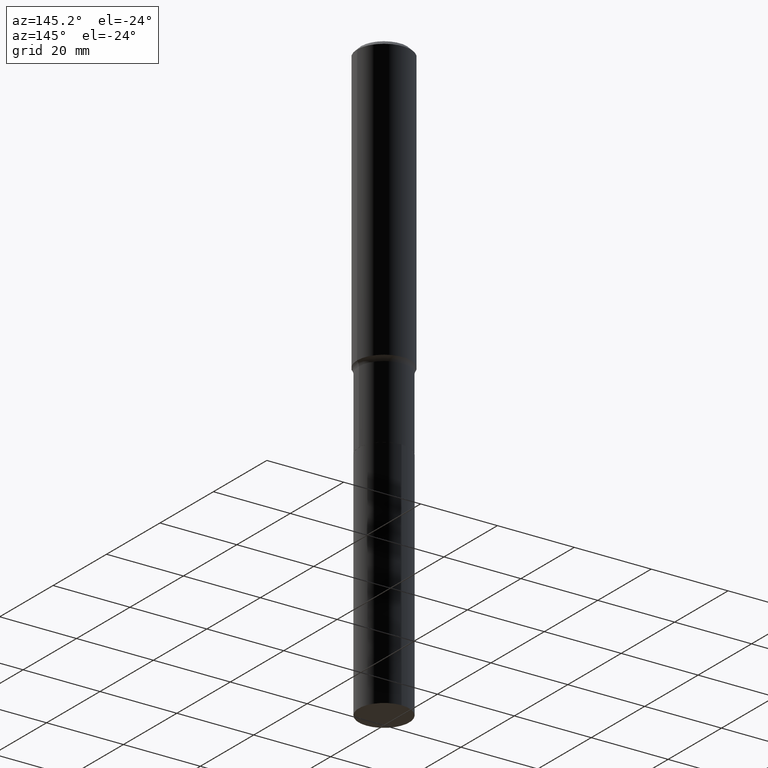
[diagram: clean part render]
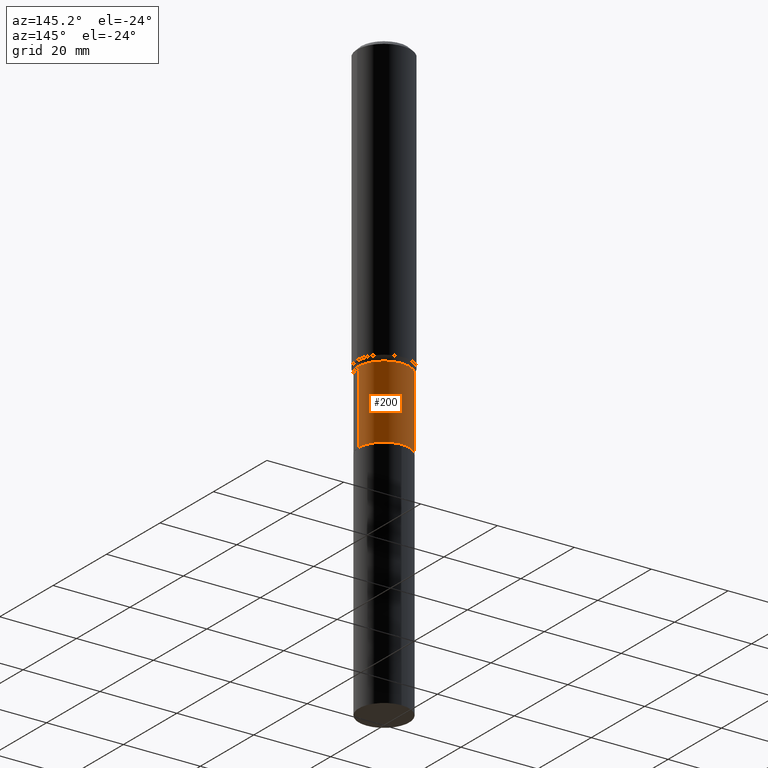
[diagram: same view with one face highlighted and labeled with its STEP entity id]
A machine part, auxiliary view. The second image highlights one B-rep face of the part: STEP entity #200.
In plain terms, the highlighted cylindrical surface (edge-blend (fillet) strip) has radius 6.5481 mm, axis along (-0, 0, 1).
Its self-contained STEP definition (entity closure, byte-faithful):
#65 = DIRECTION ( 'NONE',  ( -2.445468806185136877E-29, 3.491481338843145188E-15, 1.000000000000000000 ) ) ;
#66 = CYLINDRICAL_SURFACE ( 'NONE', #369, 0.2577999999999999181 ) ;
#75 = AXIS2_PLACEMENT_3D ( 'NONE', #261, #93, #89 ) ;
#78 = EDGE_CURVE ( 'NONE', #218, #158, #160, .T. ) ;
#80 = ORIENTED_EDGE ( 'NONE', *, *, #100, .F. ) ;
#89 = DIRECTION ( 'NONE',  ( 1.000000000000000000, -6.982962677686267499E-15, 0.000000000000000000 ) ) ;
#93 = DIRECTION ( 'NONE',  ( -2.445468806185136597E-29, 3.491481338843145583E-15, 1.000000000000000000 ) ) ;
#96 = CARTESIAN_POINT ( 'NONE',  ( -0.2577999999999999181, 1.831779172789537697E-15, -1.268101466267714406E-29 ) ) ;
#100 = EDGE_CURVE ( 'NONE', #218, #265, #273, .T. ) ;
#125 = ORIENTED_EDGE ( 'NONE', *, *, #466, .T. ) ;
#135 = DIRECTION ( 'NONE',  ( -2.445468806185136597E-29, 3.491481338843145583E-15, 1.000000000000000000 ) ) ;
#152 = VECTOR ( 'NONE', #65, 39.37007874015748143 ) ;
#158 = VERTEX_POINT ( 'NONE', #396 ) ;
#160 = CIRCLE ( 'NONE', #75, 0.2577999999999999736 ) ;
#161 = EDGE_LOOP ( 'NONE', ( #439, #125, #453, #80 ) ) ;
#170 = CARTESIAN_POINT ( 'NONE',  ( 0.2577999999999999736, -1.472183106523211783E-14, -3.700899999999999856 ) ) ;
#191 = LINE ( 'NONE', #96, #222 ) ;
#200 = ADVANCED_FACE ( 'NONE', ( #277 ), #66, .T. ) ;
#218 = VERTEX_POINT ( 'NONE', #170 ) ;
#222 = VECTOR ( 'NONE', #419, 39.37007874015748143 ) ;
#235 = DIRECTION ( 'NONE',  ( 1.000000000000000000, -6.982962677686269077E-15, 0.000000000000000000 ) ) ;
#247 = CARTESIAN_POINT ( 'NONE',  ( 0.2577999999999999181, -1.800207778307519167E-15, 1.257078372800191925E-29 ) ) ;
#261 = CARTESIAN_POINT ( 'NONE',  ( 9.050435504810572451E-29, -1.292162328692459709E-14, -3.700899999999999856 ) ) ;
#265 = VERTEX_POINT ( 'NONE', #404 ) ;
#273 = LINE ( 'NONE', #247, #152 ) ;
#277 = FACE_OUTER_BOUND ( 'NONE', #161, .T. ) ;
#284 = VERTEX_POINT ( 'NONE', #444 ) ;
#290 = CIRCLE ( 'NONE', #395, 0.2577999999999999181 ) ;
#341 = DIRECTION ( 'NONE',  ( -2.445468806185136597E-29, 3.491481338843145583E-15, 1.000000000000000000 ) ) ;
#369 = AXIS2_PLACEMENT_3D ( 'NONE', #465, #135, #427 ) ;
#370 = CARTESIAN_POINT ( 'NONE',  ( 7.224159400351512139E-29, -1.031418502307653680E-14, -2.954099999999999948 ) ) ;
#395 = AXIS2_PLACEMENT_3D ( 'NONE', #370, #341, #235 ) ;
#396 = CARTESIAN_POINT ( 'NONE',  ( -0.2578000000000000291, -9.786124982211029248E-15, -3.700899999999999856 ) ) ;
#404 = CARTESIAN_POINT ( 'NONE',  ( 0.2577999999999999181, -1.211439280138405597E-14, -2.954099999999999948 ) ) ;
#419 = DIRECTION ( 'NONE',  ( -2.445468806185136877E-29, 3.491481338843145188E-15, 1.000000000000000000 ) ) ;
#427 = DIRECTION ( 'NONE',  ( 1.000000000000000000, -6.982962677686267499E-15, 4.876176775795936353E-29 ) ) ;
#439 = ORIENTED_EDGE ( 'NONE', *, *, #78, .T. ) ;
#444 = CARTESIAN_POINT ( 'NONE',  ( -0.2577999999999999181, -9.786124982211029248E-15, -2.954099999999999948 ) ) ;
#453 = ORIENTED_EDGE ( 'NONE', *, *, #454, .F. ) ;
#454 = EDGE_CURVE ( 'NONE', #265, #284, #290, .T. ) ;
#465 = CARTESIAN_POINT ( 'NONE',  ( 0.000000000000000000, 0.000000000000000000, 0.000000000000000000 ) ) ;
#466 = EDGE_CURVE ( 'NONE', #158, #284, #191, .T. ) ;